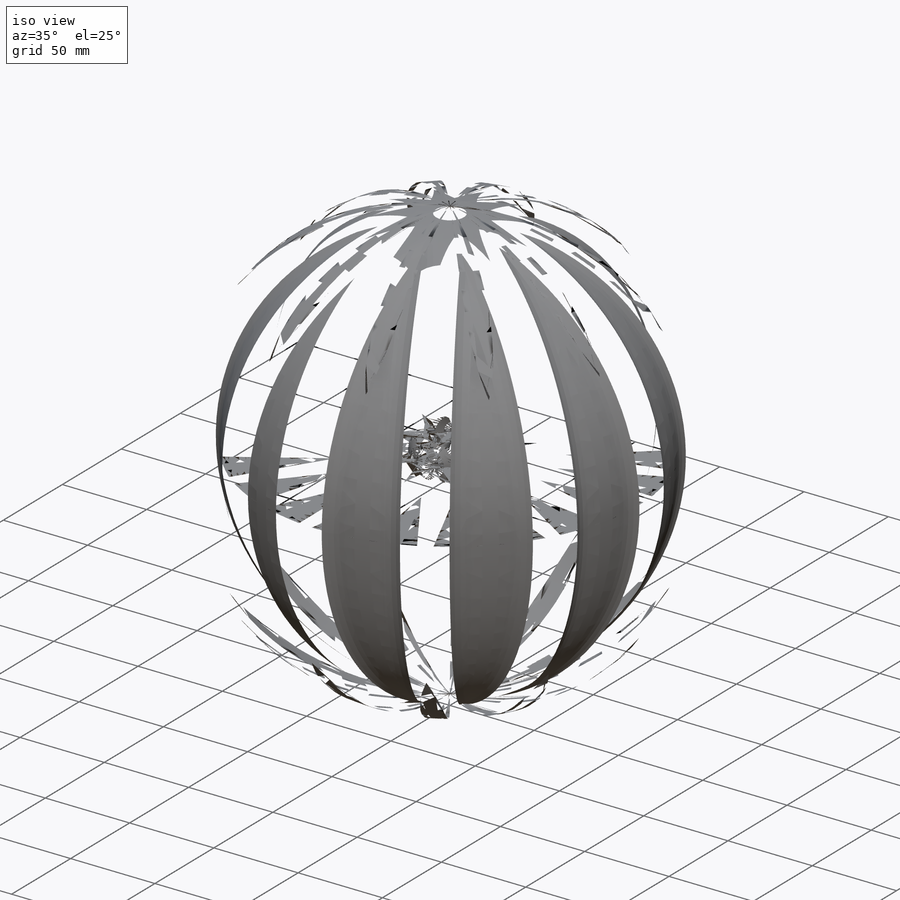
[diagram: iso view]
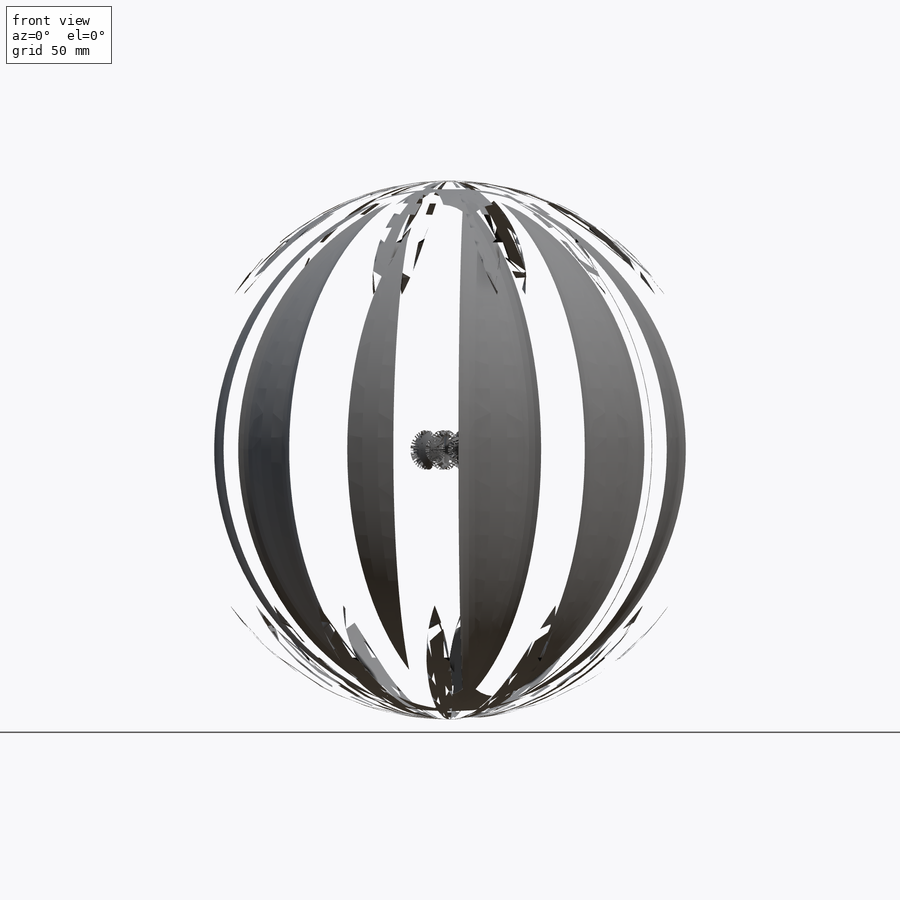
[diagram: front view]
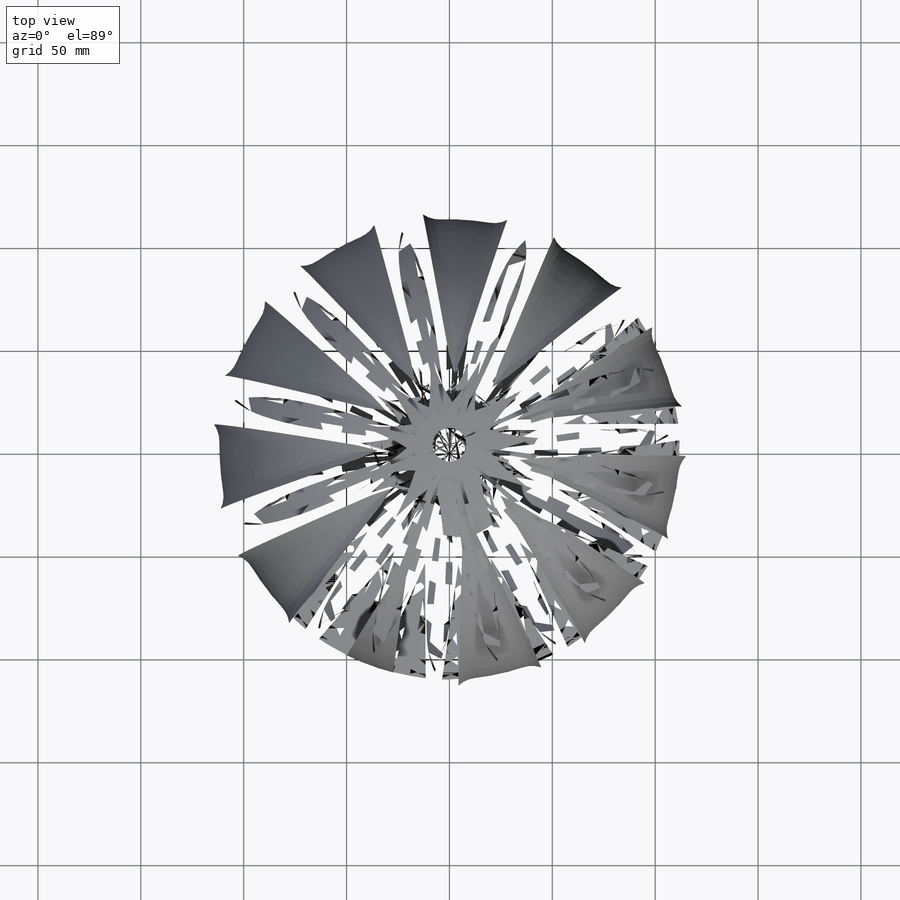
[diagram: top view]
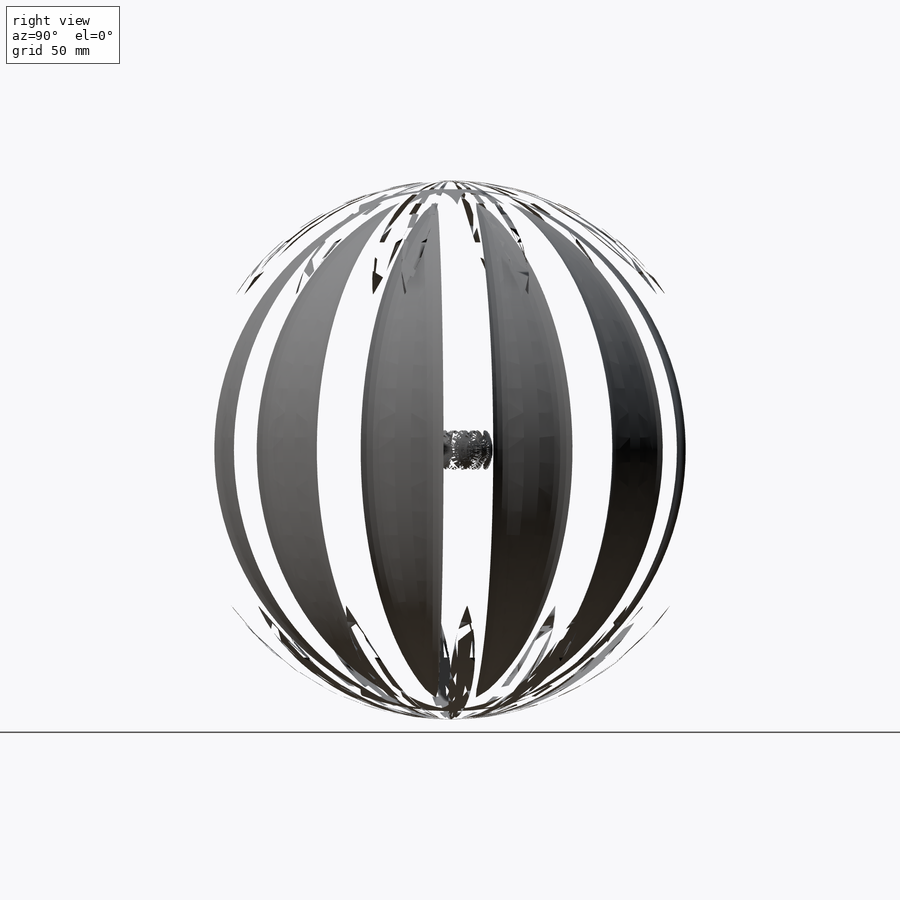
[diagram: right view]
SOLIDWORKS PART (.sldprt)
format: sldprt  version: not decoded by parser v0  size: 1,544,704 bytes
history: native  units: mm
features: sketch x5, revolve x2, cut_revolve x2, fillet x2, material x1, plane x1, cut_extrude x1, pattern_circular x1 (+11 scaffold rows collapsed)
feature tree (26):
  scaffold x11  (default folders/planes/origin — collapsed)
  material  "ABS"
  sketch  "Sketch1"  dims[D1=127.0mm]
  revolve  "Revolve3"  Angle=360deg
  plane  "Plane1"
  sketch  "Sketch2"  dims[D1=254.0mm]
  cut_extrude  "Cut-Extrude2"  Depth=2.54mm
  sketch  "Sketch4"  dims[c1.D1=1.27mm c1.D2=9.9568mm c2.D2=15.0deg c2.D3=19.05mm c2.D4=25.4mm c2.D5=1.27mm]
  cut_revolve  "Cut-Revolve1"  Angle=25deg
  fillet  "Fillet4"  Radius=13.97mm
  fillet  "Fillet5"  Radius=16.51mm
  sketch  "Sketch9"  dims[D1=101.6mm]
  cut_revolve  "Cut-Revolve2"  Angle=360deg
  pattern_circular  "CirPattern1"  Count=11 Angle=360deg
  sketch  "Sketch5"  dims[c1.D1=25.4mm c1.D2=25.4mm c1.D3=12.7mm c2.D3=80.0deg]
  revolve  "Revolve4"  Angle=360deg
decode coverage: 13 of 13 modeling features carry decoded parameters
note: suppression state not decoded; provenance and decode notes live in map.json
